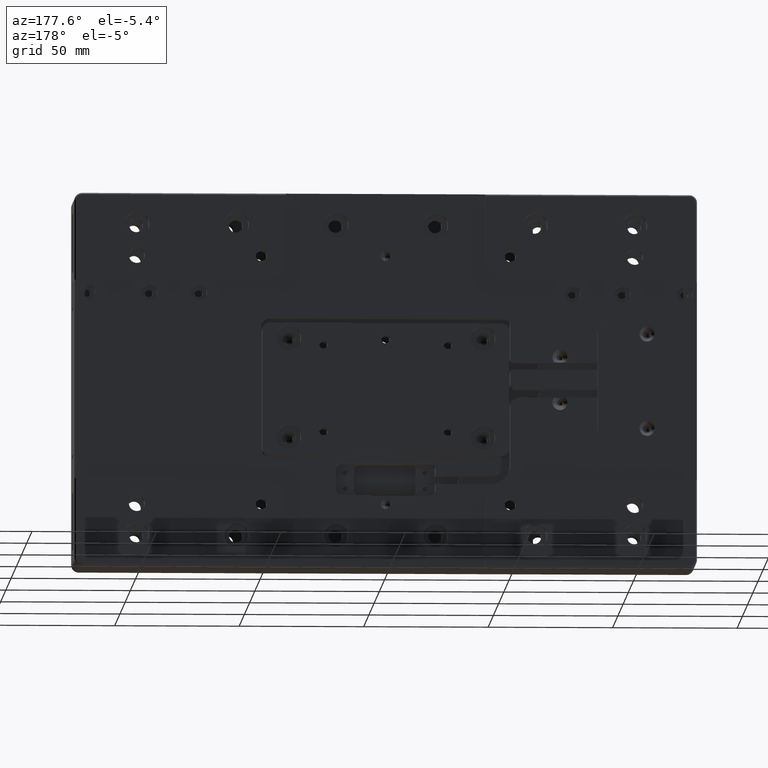
[diagram: clean part render]
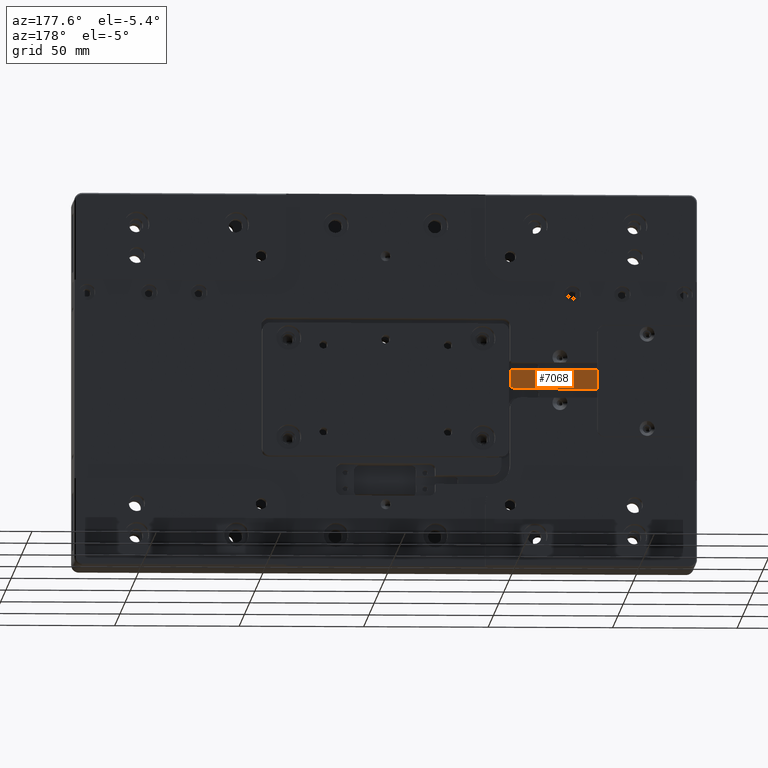
[diagram: same view with one face highlighted and labeled with its STEP entity id]
A machine part, auxiliary view. The second image highlights one B-rep face of the part: STEP entity #7068.
In plain terms, the highlighted planar face has unit normal (0, 1, 0).
Its self-contained STEP definition (entity closure, byte-faithful):
#986 = DIRECTION ( 'NONE',  ( 0.000000000000000000, 1.000000000000000000, 0.000000000000000000 ) ) ;
#2619 = EDGE_CURVE ( 'NONE', #16377, #34175, #20497, .T. ) ;
#3039 = LINE ( 'NONE', #16611, #18942 ) ;
#3656 = LINE ( 'NONE', #14550, #29910 ) ;
#4839 = LINE ( 'NONE', #5002, #31488 ) ;
#4968 = AXIS2_PLACEMENT_3D ( 'NONE', #13008, #23902, #14521 ) ;
#5002 = CARTESIAN_POINT ( 'NONE',  ( -54.25000000000000000, 11.50000000000000000, -3.250000000000000444 ) ) ;
#5599 = EDGE_LOOP ( 'NONE', ( #5624, #20918, #24838, #29856, #32903, #35285 ) ) ;
#5624 = ORIENTED_EDGE ( 'NONE', *, *, #2619, .T. ) ;
#5698 = EDGE_CURVE ( 'NONE', #33986, #33126, #27777, .T. ) ;
#5945 = VERTEX_POINT ( 'NONE', #8884 ) ;
#6668 = CARTESIAN_POINT ( 'NONE',  ( -50.00000000000000000, 11.50000000000000178, 3.500000000000001332 ) ) ;
#7000 = DIRECTION ( 'NONE',  ( -1.000000000000000000, -0.000000000000000000, 0.000000000000000000 ) ) ;
#7032 = EDGE_CURVE ( 'NONE', #30128, #34175, #26379, .T. ) ;
#7068 = ADVANCED_FACE ( 'NONE', ( #13350 ), #24227, .T. ) ;
#7474 = DIRECTION ( 'NONE',  ( 1.000000000000000000, -0.000000000000000000, 0.000000000000000000 ) ) ;
#7725 = CARTESIAN_POINT ( 'NONE',  ( -51.00000000000000711, 11.50000000000000178, 4.500000000000000888 ) ) ;
#8884 = CARTESIAN_POINT ( 'NONE',  ( -85.00000000000000000, 11.50000000000000178, -3.250000000000000888 ) ) ;
#10709 = DIRECTION ( 'NONE',  ( -0.000000000000000000, -0.000000000000000000, -1.000000000000000000 ) ) ;
#12051 = EDGE_CURVE ( 'NONE', #5945, #16377, #3656, .T. ) ;
#12830 = CARTESIAN_POINT ( 'NONE',  ( -85.00000000000000000, 11.50000000000000178, 4.500000000000000888 ) ) ;
#13008 = CARTESIAN_POINT ( 'NONE',  ( -52.00000000000000711, 11.50000000000000355, -1.250000000000000000 ) ) ;
#13350 = FACE_OUTER_BOUND ( 'NONE', #5599, .T. ) ;
#14521 = DIRECTION ( 'NONE',  ( 0.000000000000000000, 0.000000000000000000, 1.000000000000000000 ) ) ;
#14550 = CARTESIAN_POINT ( 'NONE',  ( -85.00000000000000000, 11.50000000000000000, 0.000000000000000000 ) ) ;
#15513 = CARTESIAN_POINT ( 'NONE',  ( -125.0000000000000000, 11.50000000000000000, 4.500000000000000888 ) ) ;
#16103 = AXIS2_PLACEMENT_3D ( 'NONE', #32820, #32636, #29955 ) ;
#16377 = VERTEX_POINT ( 'NONE', #12830 ) ;
#16611 = CARTESIAN_POINT ( 'NONE',  ( -50.00000000000000000, 11.50000000000000000, -34.00000000000000000 ) ) ;
#17813 = AXIS2_PLACEMENT_3D ( 'NONE', #35121, #986, #25457 ) ;
#18061 = CARTESIAN_POINT ( 'NONE',  ( -50.00000000000000000, 11.50000000000000178, -1.250000000000000666 ) ) ;
#18942 = VECTOR ( 'NONE', #10709, 1000.000000000000000 ) ;
#20497 = LINE ( 'NONE', #15513, #33870 ) ;
#20918 = ORIENTED_EDGE ( 'NONE', *, *, #7032, .F. ) ;
#22215 = DIRECTION ( 'NONE',  ( 0.000000000000000000, -0.000000000000000000, 1.000000000000000000 ) ) ;
#23827 = EDGE_CURVE ( 'NONE', #30128, #33126, #3039, .T. ) ;
#23902 = DIRECTION ( 'NONE',  ( -0.000000000000000000, -1.000000000000000000, -0.000000000000000000 ) ) ;
#24227 = PLANE ( 'NONE',  #17813 ) ;
#24716 = CARTESIAN_POINT ( 'NONE',  ( -52.00000000000000711, 11.50000000000000355, -3.250000000000000444 ) ) ;
#24838 = ORIENTED_EDGE ( 'NONE', *, *, #23827, .T. ) ;
#25457 = DIRECTION ( 'NONE',  ( 0.000000000000000000, -0.000000000000000000, 1.000000000000000000 ) ) ;
#26379 = CIRCLE ( 'NONE', #16103, 1.000000000000000444 ) ;
#27777 = CIRCLE ( 'NONE', #4968, 2.000000000000000000 ) ;
#29856 = ORIENTED_EDGE ( 'NONE', *, *, #5698, .F. ) ;
#29910 = VECTOR ( 'NONE', #22215, 1000.000000000000000 ) ;
#29955 = DIRECTION ( 'NONE',  ( 0.000000000000000000, 0.000000000000000000, 1.000000000000000000 ) ) ;
#30128 = VERTEX_POINT ( 'NONE', #6668 ) ;
#31488 = VECTOR ( 'NONE', #7000, 1000.000000000000000 ) ;
#32636 = DIRECTION ( 'NONE',  ( -0.000000000000000000, -1.000000000000000000, -0.000000000000000000 ) ) ;
#32820 = CARTESIAN_POINT ( 'NONE',  ( -51.00000000000000711, 11.50000000000000355, 3.500000000000000000 ) ) ;
#32903 = ORIENTED_EDGE ( 'NONE', *, *, #34634, .T. ) ;
#33126 = VERTEX_POINT ( 'NONE', #18061 ) ;
#33870 = VECTOR ( 'NONE', #7474, 1000.000000000000000 ) ;
#33986 = VERTEX_POINT ( 'NONE', #24716 ) ;
#34175 = VERTEX_POINT ( 'NONE', #7725 ) ;
#34634 = EDGE_CURVE ( 'NONE', #33986, #5945, #4839, .T. ) ;
#35121 = CARTESIAN_POINT ( 'NONE',  ( 0.000000000000000000, 11.50000000000000000, 0.000000000000000000 ) ) ;
#35285 = ORIENTED_EDGE ( 'NONE', *, *, #12051, .T. ) ;